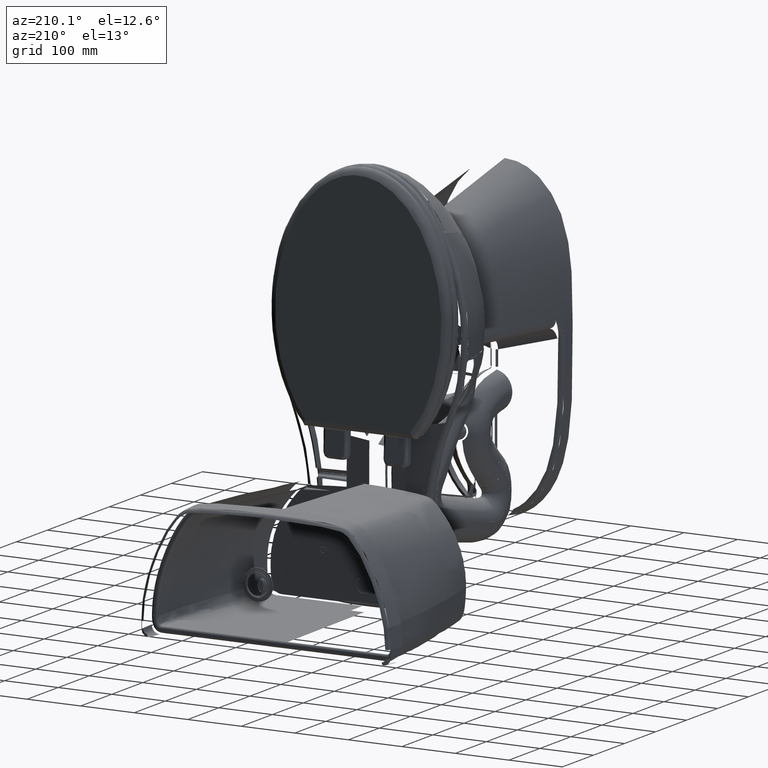
[diagram: clean part render]
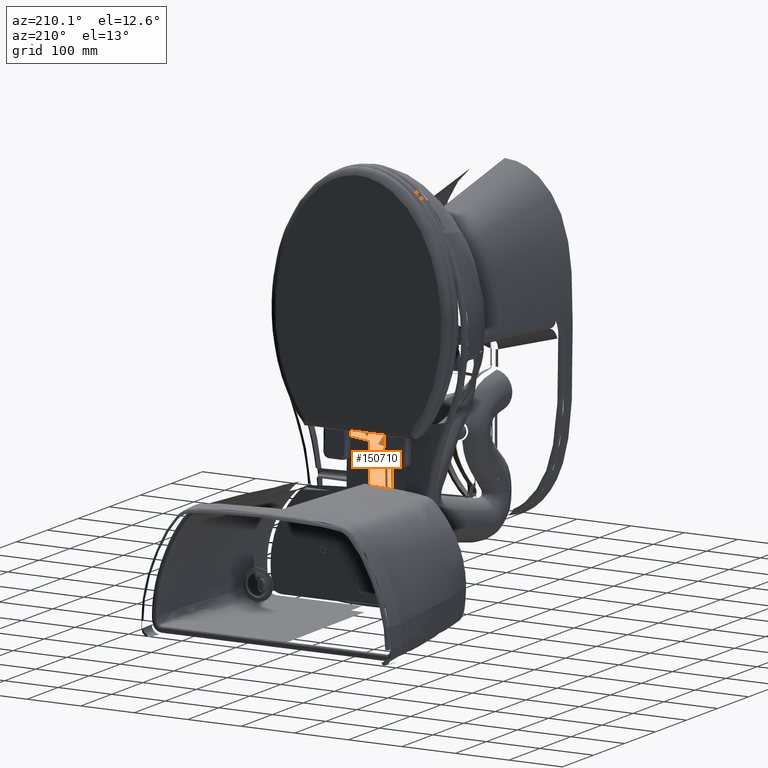
[diagram: same view with one face highlighted and labeled with its STEP entity id]
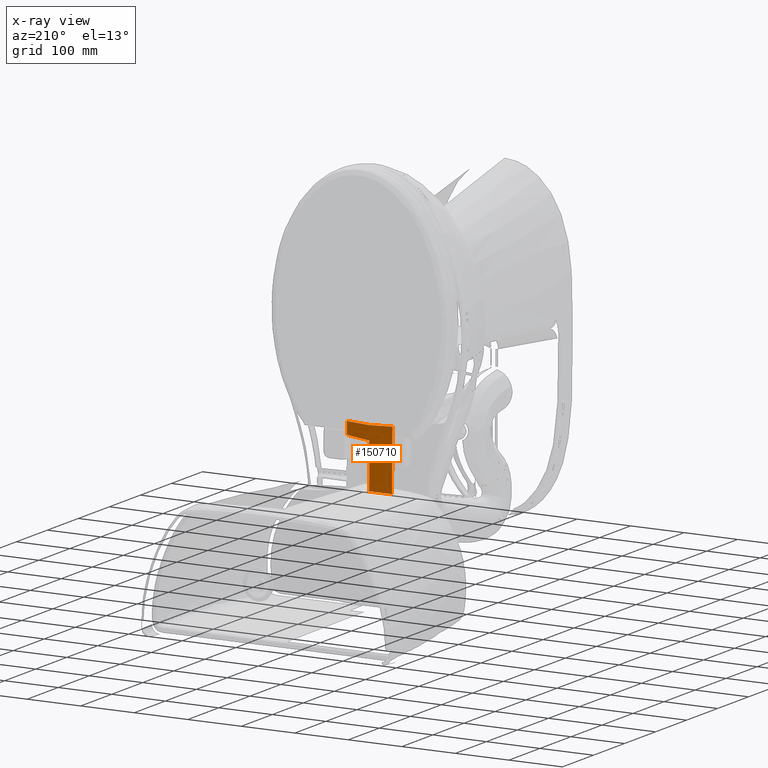
[diagram: x-ray of the same camera — body ghosted, the highlighted face saturated]
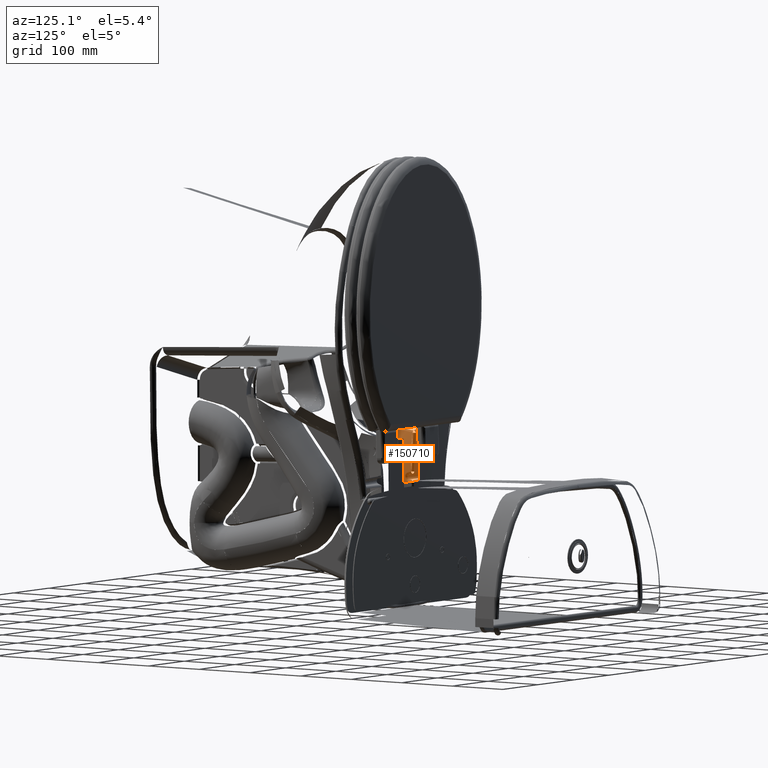
[diagram: same view with one face highlighted and labeled with its STEP entity id]
A machine part, auxiliary view. The second image highlights one B-rep face of the part: STEP entity #150710.
The next image is the same camera in x-ray: the body ghosted, the highlighted face saturated — about 0% of this face is hidden behind the body in this view.
A second angle (auxiliary view) of the same face is appended — the face is thin or edge-on in the first view.
In plain terms, the highlighted face is a freeform B-spline surface patch.
Its self-contained STEP definition (entity closure, byte-faithful):
#419 = CARTESIAN_POINT ( 'NONE',  ( -0.8453296948426295400, 9.277310464514961600, 17.41725020552830100 ) ) ;
#3462 = EDGE_CURVE ( 'NONE', #34649, #40116, #189831, .T. ) ;
#4711 = CARTESIAN_POINT ( 'NONE',  ( 1.262031217902755900E-005, 5.840588892145668800, 17.44755546165354700 ) ) ;
#5333 = CARTESIAN_POINT ( 'NONE',  ( -1.145408323849212500, 7.272754584027558700, 17.37944217982677100 ) ) ;
#6012 = CARTESIAN_POINT ( 'NONE',  ( 0.2807633142701945700, 5.963545951590545800, 17.40548478456438600 ) ) ;
#6153 = B_SPLINE_CURVE_WITH_KNOTS ( 'NONE', 3,
 ( #81792, #53304, #157446, #185226, #52660 ),
 .UNSPECIFIED., .F., .F.,
 ( 4, 1, 4 ),
 ( 1.131046335241888800E-005, 0.5000113104706700500, 1.000011310463750200 ),
 .UNSPECIFIED. ) ;
#8664 = CARTESIAN_POINT ( 'NONE',  ( -1.673139440336185000, 8.375145391310475400, 17.40227896298853200 ) ) ;
#9309 = CARTESIAN_POINT ( 'NONE',  ( -1.673139784516286100, 8.373367484965413600, 17.40225514602904200 ) ) ;
#11230 = CARTESIAN_POINT ( 'NONE',  ( -1.673309766932980800, 7.468056066951120000, 17.39045545041780000 ) ) ;
#11408 = CARTESIAN_POINT ( 'NONE',  ( -1.673228346456693000, 4.889808136460629000, 17.36144233273644100 ) ) ;
#11461 = CARTESIAN_POINT ( 'NONE',  ( -1.535764537766246300, 9.277319191602035900, 17.41084678781542600 ) ) ;
#12032 = EDGE_CURVE ( 'NONE', #76795, #90834, #185983, .T. ) ;
#12620 = ORIENTED_EDGE ( 'NONE', *, *, #15351, .T. ) ;
#14447 = CARTESIAN_POINT ( 'NONE',  ( 3.343474097025391800E-009, 9.277310331091827700, 17.43128286686899700 ) ) ;
#15351 = EDGE_CURVE ( 'NONE', #89888, #34649, #122091, .T. ) ;
#16567 = CARTESIAN_POINT ( 'NONE',  ( -0.8674121167425161700, 9.277310474239467200, 17.41677658164277900 ) ) ;
#18374 = CARTESIAN_POINT ( 'NONE',  ( 0.3948001555028334800, 5.957731742062132500, 17.40294903604305100 ) ) ;
#18972 = CARTESIAN_POINT ( 'NONE',  ( -1.144587865991338700, 8.832665526354331200, 17.39439137331496000 ) ) ;
#19607 = VERTEX_POINT ( 'NONE', #107879 ) ;
#19647 = CARTESIAN_POINT ( 'NONE',  ( 1.400999964915883100, 5.834573696694635100, 17.37259643717036200 ) ) ;
#20273 = CARTESIAN_POINT ( 'NONE',  ( 0.4190340447454840000, 5.956272914165420000, 17.40233675432701300 ) ) ;
#20903 = CARTESIAN_POINT ( 'NONE',  ( 0.8466895853988086800, 5.917627349914346800, 17.38892027020288800 ) ) ;
#23394 = VECTOR ( 'NONE', #138425, 39.37007874015748900 ) ;
#24208 = CARTESIAN_POINT ( 'NONE',  ( -1.673144571371489200, 8.348638316976936500, 17.40192405431505300 ) ) ;
#25030 = CARTESIAN_POINT ( 'NONE',  ( -1.673400283456731400, 5.779277505064923700, 17.37066296967992300 ) ) ;
#25500 = CARTESIAN_POINT ( 'NONE',  ( -1.673359237280209100, 7.017070299189182200, 17.38486825345172100 ) ) ;
#26062 = CARTESIAN_POINT ( 'NONE',  ( 1.673399557564939400, 5.779278834957351800, 17.37066292044838200 ) ) ;
#27357 = ORIENTED_EDGE ( 'NONE', *, *, #67557, .T. ) ;
#33909 = CARTESIAN_POINT ( 'NONE',  ( 0.2448005499233110400, 5.964972578080849400, 17.40613922507845100 ) ) ;
#34508 = CARTESIAN_POINT ( 'NONE',  ( -1.706153892094094600, 5.745489721775590500, 17.37003585059055100 ) ) ;
#34550 = CARTESIAN_POINT ( 'NONE',  ( 1.537552875293409600, 5.808428739062509100, 17.37042404745864100 ) ) ;
#34649 = VERTEX_POINT ( 'NONE', #59216 ) ;
#35185 = CARTESIAN_POINT ( 'NONE',  ( 1.122915400693243800, 5.880276142564561300, 17.37987528519677100 ) ) ;
#35816 = CARTESIAN_POINT ( 'NONE',  ( 0.4260540019469544200, 5.955837623621216700, 17.40215556368920200 ) ) ;
#36214 = ORIENTED_EDGE ( 'NONE', *, *, #49932, .T. ) ;
#38461 = CARTESIAN_POINT ( 'NONE',  ( -1.673033949467733500, 9.277314529659952000, 17.41456989845084600 ) ) ;
#39101 = CARTESIAN_POINT ( 'NONE',  ( -1.673392494577840200, 6.453725209277911800, 17.37816425239707000 ) ) ;
#39661 = CARTESIAN_POINT ( 'NONE',  ( 1.673285367872199100, 5.183927103511956100, 17.36435558751130900 ) ) ;
#39743 = CARTESIAN_POINT ( 'NONE',  ( -1.673042702347936200, 9.024294053861574100, 17.41108514026714700 ) ) ;
#40116 = VERTEX_POINT ( 'NONE', #116439 ) ;
#40385 = CARTESIAN_POINT ( 'NONE',  ( -1.673306579933024200, 7.490188238567009500, 17.39073474038943300 ) ) ;
#40989 = B_SPLINE_CURVE_WITH_KNOTS ( 'NONE', 3,
 ( #11408, #128562, #129189, #25030 ),
 .UNSPECIFIED., .F., .F.,
 ( 4, 4 ),
 ( 0.0000000000000000000, 1.000000000000000000 ),
 .UNSPECIFIED. ) ;
#41018 = CARTESIAN_POINT ( 'NONE',  ( -1.673300987366007900, 7.528487109892473100, 17.39121846647508800 ) ) ;
#43784 = B_SPLINE_CURVE_WITH_KNOTS ( 'NONE', 3,
 ( #146078, #11461, #58066, #99501, #85922, #177669, #46330, #132469, #16567, #163444, #419, #120101, #164716, #43796, #179569, #45047 ),
 .UNSPECIFIED., .F., .F.,
 ( 4, 2, 2, 1, 1, 1, 1, 2, 2, 4 ),
 ( 0.0000000000000000000, 0.2499999999999997200, 0.3749999999999995600, 0.4374999999999995000, 0.4687499999999995000, 0.4843749999999995000, 0.4921874999999993900, 0.4960937499999993300, 0.4999999999999992800, 1.000000000000000000 ),
 .UNSPECIFIED. ) ;
#43796 = CARTESIAN_POINT ( 'NONE',  ( -0.5594992993749460200, 9.277309331775839500, 17.42345716623950100 ) ) ;
#45047 = CARTESIAN_POINT ( 'NONE',  ( 3.343474097025391800E-009, 9.277310331091827700, 17.43128286686899700 ) ) ;
#46330 = CARTESIAN_POINT ( 'NONE',  ( -0.9600195916405325200, 9.277309808953480900, 17.41487779767506800 ) ) ;
#47709 = EDGE_CURVE ( 'NONE', #73037, #89888, #125381, .T. ) ;
#47904 = ORIENTED_EDGE ( 'NONE', *, *, #3462, .T. ) ;
#48744 = CARTESIAN_POINT ( 'NONE',  ( -1.146651907025590700, 4.887881446011810700, 17.35979551814173400 ) ) ;
#48791 = CARTESIAN_POINT ( 'NONE',  ( 1.088170640230421200, 5.885486458979976000, 17.38093862628363300 ) ) ;
#49378 = CARTESIAN_POINT ( 'NONE',  ( 1.262387109715748000E-005, 7.349389403185040400, 17.45581489309842400 ) ) ;
#49932 = EDGE_CURVE ( 'NONE', #40116, #19607, #6153, .T. ) ;
#50690 = CARTESIAN_POINT ( 'NONE',  ( 0.3626249805073096200, 5.959562283945424500, 17.40372890164659100 ) ) ;
#52660 = CARTESIAN_POINT ( 'NONE',  ( -1.673228346456693000, 4.889808136460629000, 17.36144233273644100 ) ) ;
#52925 = ORIENTED_EDGE ( 'NONE', *, *, #88765, .T. ) ;
#53304 = CARTESIAN_POINT ( 'NONE',  ( 1.124164500316810100, 4.934752842065282000, 17.36175445627494800 ) ) ;
#53988 = CARTESIAN_POINT ( 'NONE',  ( -1.673242567737993200, 7.840246650606775200, 17.39521559107224000 ) ) ;
#54622 = CARTESIAN_POINT ( 'NONE',  ( -1.673139292733484100, 8.375907845743533600, 17.40228917744279300 ) ) ;
#55182 = CARTESIAN_POINT ( 'NONE',  ( 1.673342439761019000, 5.480195256168962600, 17.36742337636460200 ) ) ;
#55270 = CARTESIAN_POINT ( 'NONE',  ( -1.673306371041700200, 7.491619924585701400, 17.39075282208550600 ) ) ;
#55908 = CARTESIAN_POINT ( 'NONE',  ( -1.673139194310141500, 8.376416258606532500, 17.40229598867597700 ) ) ;
#56334 = B_SPLINE_SURFACE_WITH_KNOTS ( 'NONE', 3, 3, ( 
 ( #137403, #152266, #64271, #34508, #94033 ),
 ( #122523, #18972, #5333, #63629, #48744 ),
 ( #138036, #109517, #49378, #4711, #182594 ),
 ( #125058, #78519, #80404, #94661, #138670 ),
 ( #77896, #64912, #108254, #154165, #136767 ) ),
 .UNSPECIFIED., .F., .F., .F.,
 ( 4, 1, 4 ),
 ( 4, 1, 4 ),
 ( -0.009990234662330000500, 0.4999999999929999900, 1.010001545126000000 ),
 ( 0.5537187798330000000, 0.6869546431430000300, 0.9198790713510000000 ),
 .UNSPECIFIED. ) ;
#58066 = CARTESIAN_POINT ( 'NONE',  ( -1.397332364456900500, 9.277311142489843100, 17.41001574504117500 ) ) ;
#59216 = CARTESIAN_POINT ( 'NONE',  ( 1.673399557564939400, 5.779278834957351800, 17.37066292044838200 ) ) ;
#63421 = CARTESIAN_POINT ( 'NONE',  ( -1.673033949467733500, 9.277314529659952000, 17.41456989845084600 ) ) ;
#63629 = CARTESIAN_POINT ( 'NONE',  ( -1.146137215529527700, 5.792502638295276000, 17.36694382600393600 ) ) ;
#64271 = CARTESIAN_POINT ( 'NONE',  ( -1.706198019375984300, 7.196619366720471900, 17.38656682619291500 ) ) ;
#64912 = CARTESIAN_POINT ( 'NONE',  ( 1.706285063145669600, 8.745731519338583800, 17.40805889894094300 ) ) ;
#64957 = CARTESIAN_POINT ( 'NONE',  ( 0.8348593901392986600, 5.919022045565195200, 17.38932387568512500 ) ) ;
#65594 = CARTESIAN_POINT ( 'NONE',  ( 0.3352477213754003800, 5.960963863411029400, 17.40434115396494300 ) ) ;
#67557 = EDGE_CURVE ( 'NONE', #19607, #76795, #40989, .T. ) ;
#68236 = CARTESIAN_POINT ( 'NONE',  ( -1.673341617789105000, 7.205169220271758800, 17.38717551015353300 ) ) ;
#70170 = CARTESIAN_POINT ( 'NONE',  ( -1.673185982693147200, 8.134460314110930000, 17.39907318621131400 ) ) ;
#73037 = VERTEX_POINT ( 'NONE', #14447 ) ;
#76795 = VERTEX_POINT ( 'NONE', #81726 ) ;
#77896 = CARTESIAN_POINT ( 'NONE',  ( 1.706304572555905600, 9.313555304988190300, 17.41603966527953100 ) ) ;
#78519 = CARTESIAN_POINT ( 'NONE',  ( 1.144613186052756000, 8.832812738106300200, 17.39439103132676900 ) ) ;
#78566 = CARTESIAN_POINT ( 'NONE',  ( 0.7608129266986716200, 5.927347950659652500, 17.39184507762981700 ) ) ;
#79195 = CARTESIAN_POINT ( 'NONE',  ( 1.201858119692240700, 5.867874803570920500, 17.37761731465771600 ) ) ;
#79825 = CARTESIAN_POINT ( 'NONE',  ( 1.232833343196823300, 5.862805899994977900, 17.37679561684452500 ) ) ;
#80404 = CARTESIAN_POINT ( 'NONE',  ( 1.145433881459055200, 7.272495580688977100, 17.37943865413386000 ) ) ;
#80448 = CARTESIAN_POINT ( 'NONE',  ( 0.7876576351769123400, 5.924433584250692800, 17.39093375900089100 ) ) ;
#81726 = CARTESIAN_POINT ( 'NONE',  ( -1.673400283456731400, 5.779277505064923700, 17.37066296967992300 ) ) ;
#81792 = CARTESIAN_POINT ( 'NONE',  ( 1.673228346456692600, 4.889808136460605000, 17.36144233273885700 ) ) ;
#85028 = CARTESIAN_POINT ( 'NONE',  ( -1.673141843263526800, 8.362732355096545300, 17.40211271359036300 ) ) ;
#85922 = CARTESIAN_POINT ( 'NONE',  ( -1.118137449231519300, 9.277308162133085300, 17.41220493619838200 ) ) ;
#88765 = EDGE_CURVE ( 'NONE', #90834, #73037, #43784, .T. ) ;
#89888 = VERTEX_POINT ( 'NONE', #167972 ) ;
#90834 = VERTEX_POINT ( 'NONE', #63421 ) ;
#92491 = FACE_OUTER_BOUND ( 'NONE', #113483, .T. ) ;
#94033 = CARTESIAN_POINT ( 'NONE',  ( -1.706122732605118300, 4.841187382003937500, 17.36101207291338600 ) ) ;
#94661 = CARTESIAN_POINT ( 'NONE',  ( 1.146162812588189100, 5.792344290755905500, 17.36694095134252100 ) ) ;
#94712 = CARTESIAN_POINT ( 'NONE',  ( 0.5658823634276932700, 5.946097490278898300, 17.39823747387161000 ) ) ;
#95343 = CARTESIAN_POINT ( 'NONE',  ( 1.261792964328955800, 5.857982775390738100, 17.37605785083964000 ) ) ;
#97367 = CARTESIAN_POINT ( 'NONE',  ( -1.673104053347797000, 8.557938451741195600, 17.40472793967978800 ) ) ;
#98008 = CARTESIAN_POINT ( 'NONE',  ( -1.673284371619058900, 7.619775019095524900, 17.39236925587717100 ) ) ;
#99041 = ORIENTED_EDGE ( 'NONE', *, *, #12032, .T. ) ;
#99501 = CARTESIAN_POINT ( 'NONE',  ( -1.188130236510988000, 9.277308133524508400, 17.41133727609620500 ) ) ;
#99915 = CARTESIAN_POINT ( 'NONE',  ( -1.673369021850613600, 6.882747173358313700, 17.38324522537332600 ) ) ;
#107662 = CARTESIAN_POINT ( 'NONE',  ( 0.1380037882797685300, 5.968385980572073800, 17.40773660899292400 ) ) ;
#107879 = CARTESIAN_POINT ( 'NONE',  ( -1.673228346456693000, 4.889808136460629000, 17.36144233273644100 ) ) ;
#108254 = CARTESIAN_POINT ( 'NONE',  ( 1.706235321309055300, 7.196228367559055700, 17.38656170735039200 ) ) ;
#108301 = CARTESIAN_POINT ( 'NONE',  ( 0.8495080408042574600, 5.917292820826981300, 17.38882413358554400 ) ) ;
#109517 = CARTESIAN_POINT ( 'NONE',  ( 1.272444699654330600E-005, 8.920301892275590600, 17.46260787191732400 ) ) ;
#109564 = CARTESIAN_POINT ( 'NONE',  ( 0.8191042828051816600, 5.920855607110421900, 17.38986145319297400 ) ) ;
#112214 = CARTESIAN_POINT ( 'NONE',  ( -1.673140471971716700, 8.369816288019738000, 17.40220757916794300 ) ) ;
#112861 = CARTESIAN_POINT ( 'NONE',  ( -1.673149969688968200, 8.320745421407504900, 17.40155101762838900 ) ) ;
#113483 = EDGE_LOOP ( 'NONE', ( #27357, #99041, #52925, #117962, #12620, #47904, #36214 ) ) ;
#114771 = CARTESIAN_POINT ( 'NONE',  ( -1.673306426993832900, 7.491236658953082100, 17.39074798140299900 ) ) ;
#116439 = CARTESIAN_POINT ( 'NONE',  ( 1.673228346456692600, 4.889808136460605000, 17.36144233273885700 ) ) ;
#117962 = ORIENTED_EDGE ( 'NONE', *, *, #47709, .T. ) ;
#120101 = CARTESIAN_POINT ( 'NONE',  ( -0.8409118513783336900, 9.277310453290505500, 17.41734569703438900 ) ) ;
#121925 = CARTESIAN_POINT ( 'NONE',  ( 0.8501162090300835600, 5.917220526029027800, 17.38880339040393600 ) ) ;
#122091 = B_SPLINE_CURVE_WITH_KNOTS ( 'NONE', 3,
 ( #182009, #153578, #107662, #33909, #6012, #65594, #50690, #18374, #183271, #20273, #154213, #122572, #35816, #123837, #94712, #169046, #137452, #78566, #80448, #109564, #64957, #139343, #20903, #152308, #108301, #121925, #166512, #124463, #48791, #35185, #168413, #79195, #79825, #123221, #182640, #183890, #95343, #19647, #34550, #136811 ),
 .UNSPECIFIED., .F., .F.,
 ( 4, 2, 2, 1, 1, 1, 1, 2, 2, 2, 2, 1, 1, 1, 1, 1, 2, 2, 2, 2, 1, 1, 1, 2, 2, 4 ),
 ( 0.0000000000000000000, 0.1250000000000035200, 0.1875000000000053600, 0.2187500000000061600, 0.2343750000000066300, 0.2421875000000069100, 0.2460937500000071100, 0.2480468750000073000, 0.2500000000000074900, 0.3750000000000151500, 0.4375000000000189800, 0.4687500000000209300, 0.4843750000000219800, 0.4921875000000226500, 0.4960937500000230900, 0.4980468750000230900, 0.4990234375000230900, 0.5000000000000230900, 0.6250000000000224300, 0.6875000000000220900, 0.7187500000000219800, 0.7343750000000217600, 0.7421875000000216500, 0.7460937500000216500, 0.7500000000000216500, 1.000000000000000000 ),
 .UNSPECIFIED. ) ;
#122523 = CARTESIAN_POINT ( 'NONE',  ( -1.144266044975590600, 9.405676900610236800, 17.39996969371653500 ) ) ;
#122572 = CARTESIAN_POINT ( 'NONE',  ( 0.4248168979906507000, 5.955914731988531100, 17.40218761269078800 ) ) ;
#123221 = CARTESIAN_POINT ( 'NONE',  ( 1.248368252695425400, 5.860228585588879800, 17.37639612753861200 ) ) ;
#123837 = CARTESIAN_POINT ( 'NONE',  ( 0.4960913790517424400, 5.951456823281009900, 17.40033660371252800 ) ) ;
#124463 = CARTESIAN_POINT ( 'NONE',  ( 0.9848273931081691400, 5.900354365815117000, 17.38421691683898700 ) ) ;
#125058 = CARTESIAN_POINT ( 'NONE',  ( 1.144291298522441200, 9.405973952728347200, 17.39997054035433200 ) ) ;
#125381 = LINE ( 'NONE', #133960, #23394 ) ;
#127118 = CARTESIAN_POINT ( 'NONE',  ( -1.673033938409568000, 9.158817861302193100, 17.41293584602367900 ) ) ;
#127741 = CARTESIAN_POINT ( 'NONE',  ( -1.673400301262197600, 6.133009927971423600, 17.37449420412080100 ) ) ;
#128380 = CARTESIAN_POINT ( 'NONE',  ( -1.673139130075682400, 8.376748065223662100, 17.40230043400650900 ) ) ;
#128562 = CARTESIAN_POINT ( 'NONE',  ( -1.673285609075618100, 5.183945494531208500, 17.36435576622616800 ) ) ;
#129016 = CARTESIAN_POINT ( 'NONE',  ( -1.673306793867084300, 7.488719606164798900, 17.39071619396710100 ) ) ;
#129189 = CARTESIAN_POINT ( 'NONE',  ( -1.673342922387957900, 5.480215075053859400, 17.36742362540591600 ) ) ;
#129664 = CARTESIAN_POINT ( 'NONE',  ( -1.673313114412371000, 7.444206088598546600, 17.39015496898961300 ) ) ;
#132469 = CARTESIAN_POINT ( 'NONE',  ( -0.8983062207290786200, 9.277310360685339300, 17.41612640996878300 ) ) ;
#133960 = CARTESIAN_POINT ( 'NONE',  ( 3.346773293827701800E-009, 7.121972848261975700, 17.41631488453835200 ) ) ;
#136767 = CARTESIAN_POINT ( 'NONE',  ( 1.706159956659055300, 4.841196745149607000, 17.36101227737795200 ) ) ;
#136811 = CARTESIAN_POINT ( 'NONE',  ( 1.673399557564939400, 5.779278834957351800, 17.37066292044838200 ) ) ;
#137403 = CARTESIAN_POINT ( 'NONE',  ( -1.706267173292519600, 9.313112831807087500, 17.41603196570866200 ) ) ;
#137452 = CARTESIAN_POINT ( 'NONE',  ( 0.7072711170028366200, 5.932974346183302200, 17.39364978719449100 ) ) ;
#138036 = CARTESIAN_POINT ( 'NONE',  ( 1.275056620209842600E-005, 9.498751423633859000, 17.46502592660630200 ) ) ;
#138425 = DIRECTION ( 'NONE',  ( 1.743079610442031000E-012, -0.9999758870549392300, -0.006944444447724614500 ) ) ;
#138670 = CARTESIAN_POINT ( 'NONE',  ( 1.146677327702362300, 4.887888686783465000, 17.35979374937401700 ) ) ;
#139343 = CARTESIAN_POINT ( 'NONE',  ( 0.8427448680786305800, 5.918094108842716100, 17.38905483788387900 ) ) ;
#143932 = CARTESIAN_POINT ( 'NONE',  ( -1.673307221106320200, 7.485779406496549300, 17.39067906982291900 ) ) ;
#144566 = CARTESIAN_POINT ( 'NONE',  ( -1.673169193691413300, 8.221352626451745100, 17.40022629406684700 ) ) ;
#146078 = CARTESIAN_POINT ( 'NONE',  ( -1.673033949467733500, 9.277314529659952000, 17.41456989845084600 ) ) ;
#150710 = ADVANCED_FACE ( 'NONE', ( #92491 ), #56334, .T. ) ;
#152266 = CARTESIAN_POINT ( 'NONE',  ( -1.706247690154331100, 8.745513613322835100, 17.40805452590551300 ) ) ;
#152308 = CARTESIAN_POINT ( 'NONE',  ( 0.8483806021762212400, 5.917426712226162300, 17.38886258933614600 ) ) ;
#153578 = CARTESIAN_POINT ( 'NONE',  ( 0.06826169452391785100, 5.969506231379582100, 17.40831145106751900 ) ) ;
#154165 = CARTESIAN_POINT ( 'NONE',  ( 1.706191141196850400, 5.745250703141732800, 17.37003374025196900 ) ) ;
#154213 = CARTESIAN_POINT ( 'NONE',  ( 0.4225033392929538600, 5.956058356930004300, 17.40224737702663300 ) ) ;
#156857 = CARTESIAN_POINT ( 'NONE',  ( -1.673400283456731400, 5.779277505064923700, 17.37066296967992300 ) ) ;
#157446 = CARTESIAN_POINT ( 'NONE',  ( 1.231465533255531900E-010, 4.981282061995843300, 17.44081965201134600 ) ) ;
#158117 = CARTESIAN_POINT ( 'NONE',  ( -1.673196470227856800, 8.080106880785589100, 17.39835559366135300 ) ) ;
#158746 = CARTESIAN_POINT ( 'NONE',  ( -1.673319648382275900, 7.395757032030056500, 17.38954611244117000 ) ) ;
#159405 = CARTESIAN_POINT ( 'NONE',  ( -1.673308073069247600, 7.479887270013697400, 17.39060469645938100 ) ) ;
#163444 = CARTESIAN_POINT ( 'NONE',  ( -0.8519558035549974500, 9.277310476679273800, 17.41710732950703300 ) ) ;
#164716 = CARTESIAN_POINT ( 'NONE',  ( -0.8386573680260280800, 9.277310445940118600, 17.41739454793313200 ) ) ;
#166512 = CARTESIAN_POINT ( 'NONE',  ( 0.9171202990565838800, 5.909248839299476000, 17.38651812348789200 ) ) ;
#167972 = CARTESIAN_POINT ( 'NONE',  ( -1.153806840611251000E-016, 5.969519403917313800, 17.40831154263517900 ) ) ;
#168413 = CARTESIAN_POINT ( 'NONE',  ( 1.175470836853278700, 5.872073165592644800, 17.37835712849206600 ) ) ;
#169046 = CARTESIAN_POINT ( 'NONE',  ( 0.6717734026390442800, 5.936455485331248600, 17.39482893356767300 ) ) ;
#171068 = CARTESIAN_POINT ( 'NONE',  ( -1.673225819413600900, 7.927682771778830100, 17.39635215546911300 ) ) ;
#171615 = CARTESIAN_POINT ( 'NONE',  ( 1.673228346456692600, 4.889808136460605000, 17.36144233273885700 ) ) ;
#172967 = CARTESIAN_POINT ( 'NONE',  ( -1.673306396394390600, 7.491446288866654900, 17.39075062902771400 ) ) ;
#173603 = CARTESIAN_POINT ( 'NONE',  ( -1.673160534763198800, 8.266139295290663800, 17.40082202547278100 ) ) ;
#177669 = CARTESIAN_POINT ( 'NONE',  ( -1.012785922034918200, 9.277309133130987800, 17.41391825756754500 ) ) ;
#179569 = CARTESIAN_POINT ( 'NONE',  ( -0.2802731084012873300, 9.277341082417494900, 17.43128305732955900 ) ) ;
#182009 = CARTESIAN_POINT ( 'NONE',  ( -1.153806840611251000E-016, 5.969519403917313800, 17.40831154263517900 ) ) ;
#182594 = CARTESIAN_POINT ( 'NONE',  ( 1.271991571529527400E-005, 4.936289731598425800, 17.44214154173228700 ) ) ;
#182640 = CARTESIAN_POINT ( 'NONE',  ( 1.255036182813811000, 5.859114820436140300, 17.37622746075211900 ) ) ;
#183271 = CARTESIAN_POINT ( 'NONE',  ( 0.4109463313783228200, 5.956767390202961600, 17.40254340566487200 ) ) ;
#183890 = CARTESIAN_POINT ( 'NONE',  ( 1.259483713989169900, 5.858370263599079300, 17.37611559351454100 ) ) ;
#185226 = CARTESIAN_POINT ( 'NONE',  ( -1.124164500497033300, 4.934752842050993800, 17.36175445627430500 ) ) ;
#185983 = B_SPLINE_CURVE_WITH_KNOTS ( 'NONE', 3,
 ( #156857, #127741, #39101, #99915, #25500, #68236, #186545, #158746, #129664, #11230, #159405, #143932, #129016, #40385, #187828, #114771, #172967, #55270, #41018, #98008, #53988, #171068, #158117, #70170, #144566, #173603, #112861, #24208, #85028, #112214, #9309, #8664, #54622, #55908, #128380, #97367, #187187, #39743, #127118, #38461 ),
 .UNSPECIFIED., .F., .F.,
 ( 4, 2, 2, 1, 1, 1, 1, 1, 1, 1, 1, 1, 2, 2, 2, 2, 2, 1, 1, 1, 1, 1, 1, 1, 2, 2, 2, 4 ),
 ( 0.0000000000000000000, 0.2500000000010023100, 0.3750000000015034600, 0.4375000000017546000, 0.4687500000018801600, 0.4843750000019423400, 0.4921875000019740300, 0.4960937500019905200, 0.4980468750019987300, 0.4990234375020028400, 0.4995117187520049500, 0.4997558593770066200, 0.4998779296895075100, 0.5000000000020083900, 0.6250000000015373300, 0.6875000000013017400, 0.7187500000011842700, 0.7343750000011256600, 0.7421875000010962300, 0.7460937500010812500, 0.7480468750010740300, 0.7490234375010708100, 0.7495117187510690300, 0.7497558593760682600, 0.7498779296885677000, 0.7500000000010670400, 0.8750000000005335700, 1.000000000000000000 ),
 .UNSPECIFIED. ) ;
#186545 = CARTESIAN_POINT ( 'NONE',  ( -1.673332072396321900, 7.295872083141137700, 17.38829733998851500 ) ) ;
#187187 = CARTESIAN_POINT ( 'NONE',  ( -1.673077759839019900, 8.723858125933965400, 17.40698139494145000 ) ) ;
#187828 = CARTESIAN_POINT ( 'NONE',  ( -1.673306472887381400, 7.490922187874062400, 17.39074400968621600 ) ) ;
#189831 = B_SPLINE_CURVE_WITH_KNOTS ( 'NONE', 3,
 ( #26062, #55182, #39661, #171615 ),
 .UNSPECIFIED., .F., .F.,
 ( 4, 4 ),
 ( 0.0000000000000000000, 1.000000000000000000 ),
 .UNSPECIFIED. ) ;